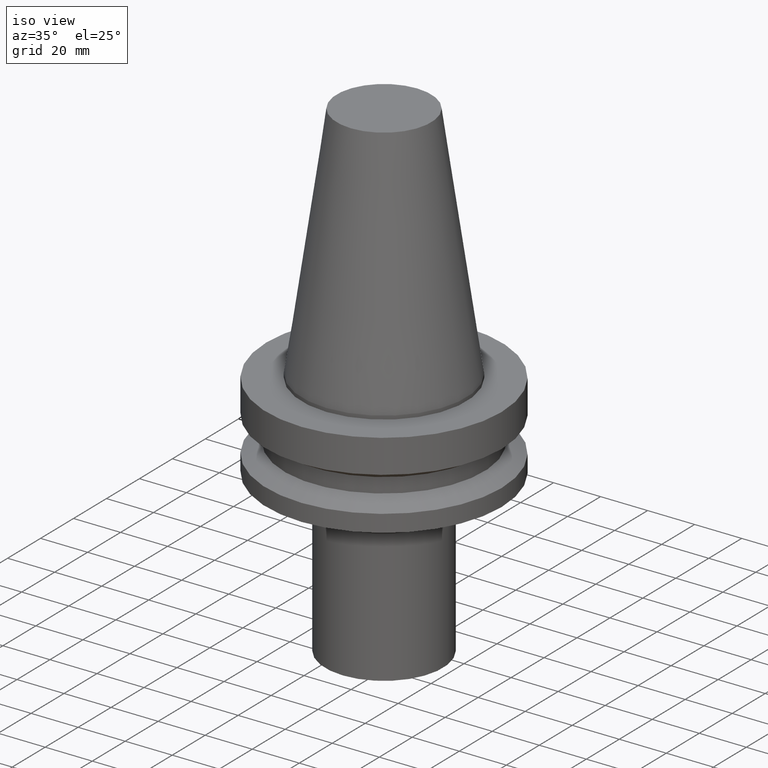
[diagram: clean part render]
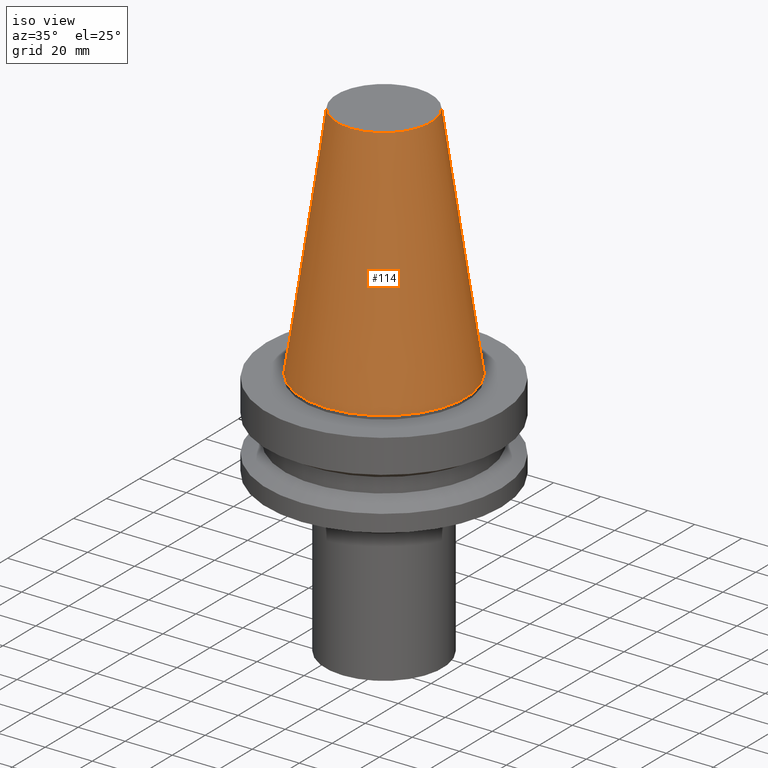
[diagram: tour spotlight — one face highlighted and labeled with its STEP entity id]
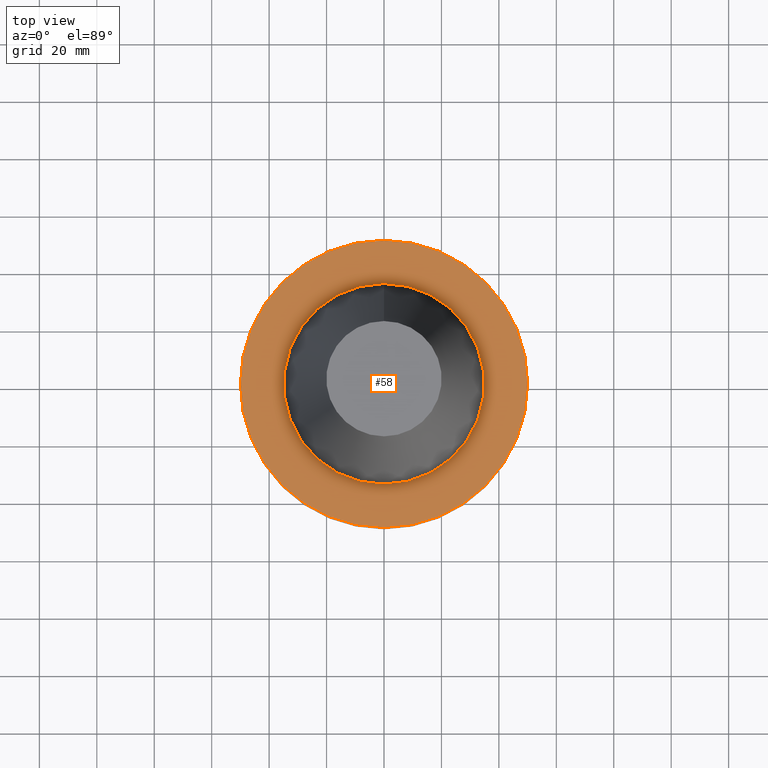
[diagram: tour spotlight — one face highlighted and labeled with its STEP entity id]
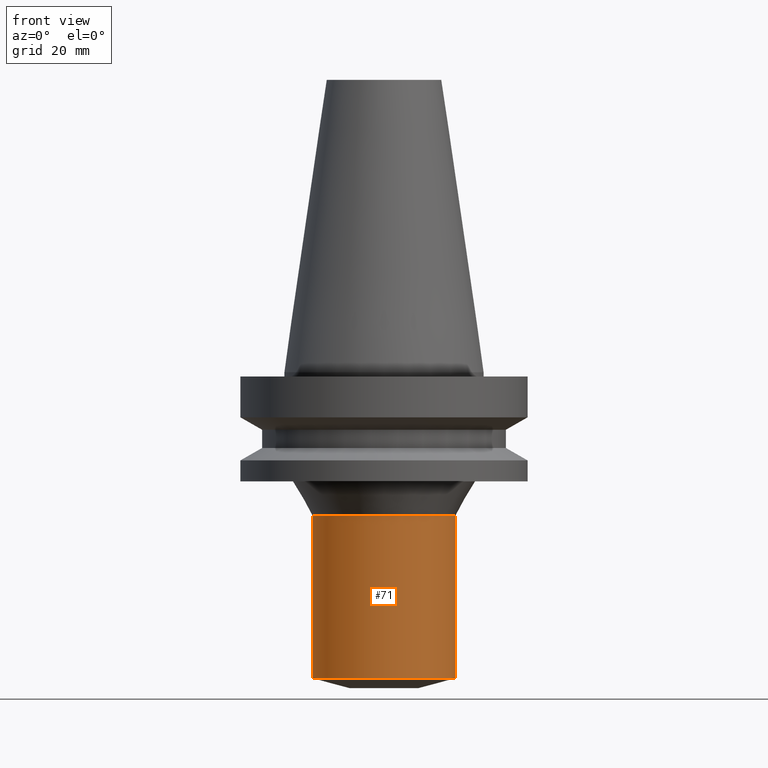
[diagram: tour spotlight — one face highlighted and labeled with its STEP entity id]
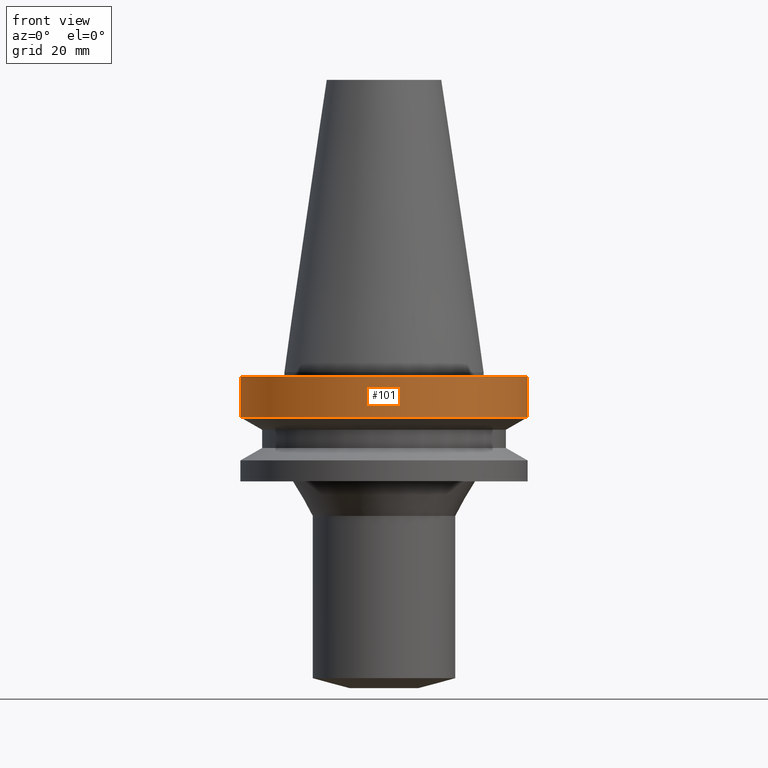
[diagram: tour spotlight — one face highlighted and labeled with its STEP entity id]
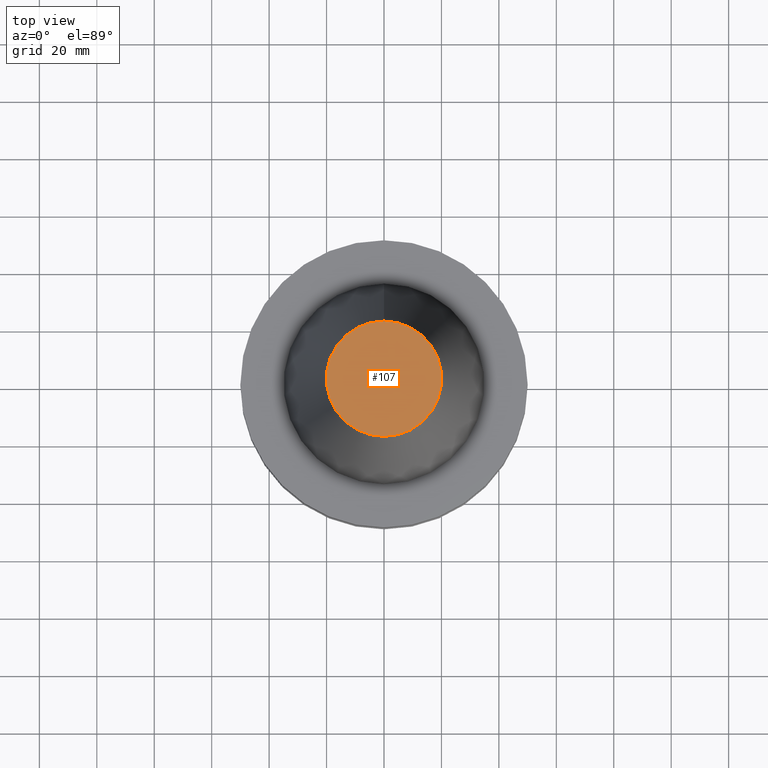
[diagram: tour spotlight — one face highlighted and labeled with its STEP entity id]
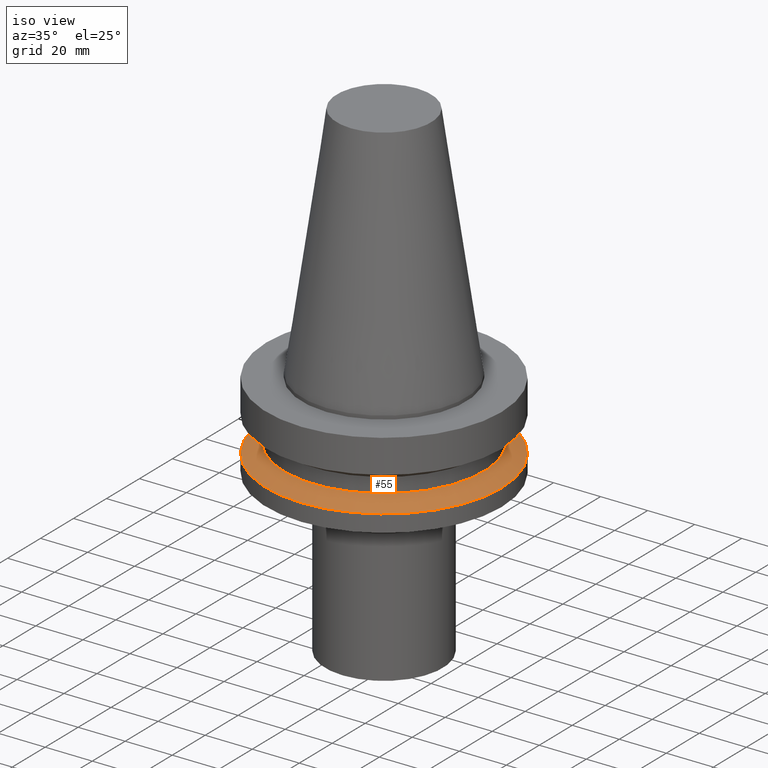
[diagram: tour spotlight — one face highlighted and labeled with its STEP entity id]
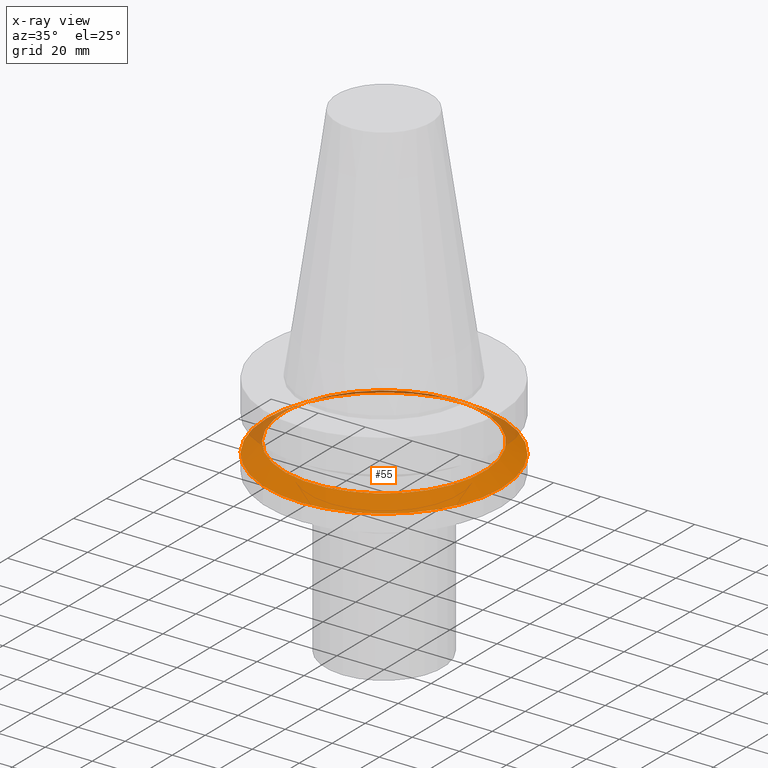
[diagram: x-ray of the same camera — body ghosted, this tour face saturated]
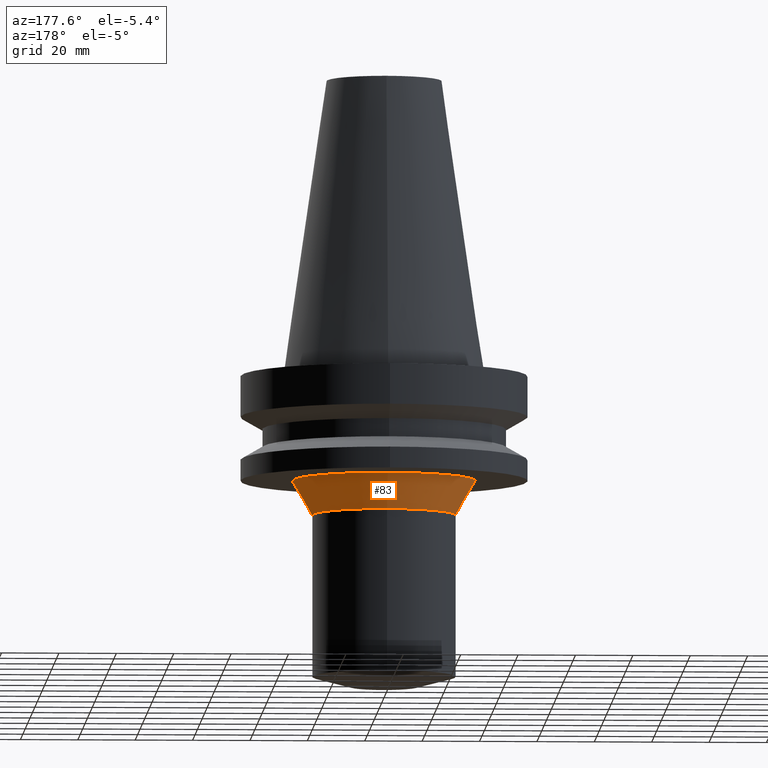
[diagram: tour spotlight — one face highlighted and labeled with its STEP entity id]
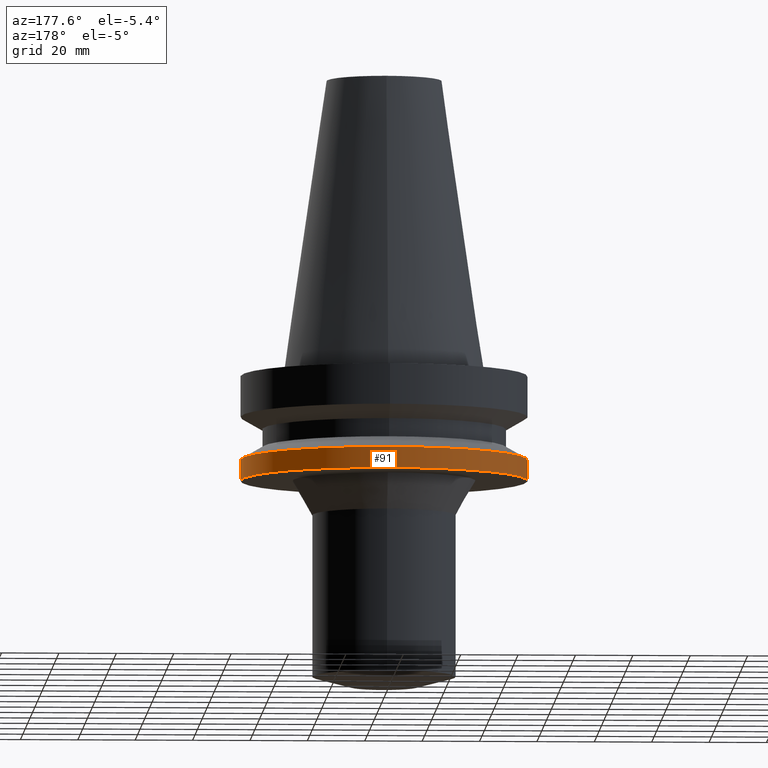
[diagram: tour spotlight — one face highlighted and labeled with its STEP entity id]
A machine part: a face-by-face anatomy tour. The part has 14 B-rep faces; the first image is the clean iso view, then the 8 largest visible faces are spotlighted one at a time (largest first), each with its STEP entity span.

Face 1 — iso view, entity #114. In plain terms, the highlighted conical surface has half-angle 8.297 deg.
Definition (entity closure, byte-faithful):
#98=EDGE_CURVE('Unnamed[1]',#212,#212,#213,.T.);
#114=ADVANCED_FACE('Unnamed[1]',(#236,#237),#238,.T.);
#121=EDGE_CURVE('Unnamed[1]',#246,#246,#247,.T.);
#212=VERTEX_POINT('',#347);
#213=CIRCLE('',#348,34.925);
#236=FACE_BOUND('',#377,.T.);
#237=FACE_BOUND('',#378,.T.);
#238=CONICAL_SURFACE('',#379,27.5020833325942,0.144812498253158);
#246=VERTEX_POINT('',#389);
#247=CIRCLE('',#390,20.0791666651884);
#347=CARTESIAN_POINT('',(-4.30483861169435E-031,34.925,4.27707894602213E-015));
#348=AXIS2_PLACEMENT_3D('',#475,#476,#477);
#377=EDGE_LOOP('',(#502));
#378=EDGE_LOOP('',(#503));
#379=AXIS2_PLACEMENT_3D('',#504,#505,#506);
#389=CARTESIAN_POINT('',(-6.23345220766002E-015,20.0791666651884,101.8));
#390=AXIS2_PLACEMENT_3D('',#511,#512,#513);
#475=CARTESIAN_POINT('',(-6.46439924272034E-048,5.24454373129558E-016,6.42271369351945E-032));
#476=DIRECTION('',(6.12323399573677E-017,1.27566376151315E-016,-1.0));
#477=DIRECTION('',(-1.26383404423932E-032,1.0,1.27566376151315E-016));
#502=ORIENTED_EDGE('',*,*,#98,.F.);
#503=ORIENTED_EDGE('',*,*,#121,.T.);
#504=CARTESIAN_POINT('',(-3.11672610383001E-015,-5.96867417297691E-015,50.8999999999999));
#505=DIRECTION('',(6.12323399573677E-017,1.27566376151432E-016,-1.0));
#506=DIRECTION('',(-1.26383404424073E-032,1.0,1.27566376151432E-016));
#511=CARTESIAN_POINT('',(-6.23345220766002E-015,-1.24618027190834E-014,101.8));
#512=DIRECTION('',(6.12323399573677E-017,1.27566376151475E-016,-1.0));
#513=DIRECTION('',(-1.2638340442405E-032,1.0,1.27566376151475E-016));

Face 2 — top view, entity #58. In plain terms, the highlighted planar face has unit normal (-0, -0, 1).
Definition (entity closure, byte-faithful):
#58=ADVANCED_FACE('Unnamed[1]',(#148,#149),#150,.T.);
#63=EDGE_CURVE('Unnamed[1]',#157,#157,#158,.T.);
#65=EDGE_CURVE('Unnamed[1]',#160,#160,#161,.T.);
#148=FACE_OUTER_BOUND('',#267,.T.);
#149=FACE_BOUND('',#268,.T.);
#150=PLANE('',#269);
#157=VERTEX_POINT('',#278);
#158=CIRCLE('',#279,34.925);
#160=VERTEX_POINT('',#282);
#161=CIRCLE('',#283,50.0);
#267=EDGE_LOOP('',(#402));
#268=EDGE_LOOP('',(#403));
#269=AXIS2_PLACEMENT_3D('',#404,#405,#406);
#278=CARTESIAN_POINT('',(9.18485099360511E-017,34.925,-1.5));
#279=AXIS2_PLACEMENT_3D('',#413,#414,#415);
#282=CARTESIAN_POINT('',(9.18485099360509E-017,50.0,-1.49999999999999));
#283=AXIS2_PLACEMENT_3D('',#416,#417,#418);
#402=ORIENTED_EDGE('',*,*,#65,.F.);
#403=ORIENTED_EDGE('',*,*,#63,.T.);
#404=CARTESIAN_POINT('',(9.1848509936051E-017,42.4625,-1.49999999999999));
#405=DIRECTION('',(-6.12323399573677E-017,-1.22464679914735E-016,1.0));
#406=DIRECTION('',(1.23259516440783E-032,-1.0,-1.22464679914735E-016));
#413=CARTESIAN_POINT('',(9.18485099360515E-017,7.15803937356665E-016,-1.5));
#414=DIRECTION('',(6.12323399573677E-017,1.27566376151315E-016,-1.0));
#415=DIRECTION('',(-1.26383404423932E-032,1.0,1.27566376151315E-016));
#416=CARTESIAN_POINT('',(9.18485099360515E-017,7.15803937356665E-016,-1.5));
#417=DIRECTION('',(6.12323399573677E-017,1.2756637615137E-016,-1.0));
#418=DIRECTION('',(-1.26383404424069E-032,1.0,1.2756637615137E-016));

Face 3 — front view, entity #71. In plain terms, the highlighted cylindrical surface (bore or boss wall) has radius 25 mm, axis along (0, 0, -1).
Definition (entity closure, byte-faithful):
#71=ADVANCED_FACE('Unnamed[1]',(#168,#169),#170,.T.);
#85=EDGE_CURVE('Unnamed[1]',#191,#191,#192,.T.);
#116=EDGE_CURVE('Unnamed[1]',#240,#240,#241,.T.);
#168=FACE_BOUND('',#292,.T.);
#169=FACE_BOUND('',#293,.T.);
#170=CYLINDRICAL_SURFACE('',#294,25.0000000000277);
#191=VERTEX_POINT('',#321);
#192=CIRCLE('',#322,24.9999999999974);
#240=VERTEX_POINT('',#382);
#241=CIRCLE('',#383,25.0000000000579);
#292=EDGE_LOOP('',(#425));
#293=EDGE_LOOP('',(#426));
#294=AXIS2_PLACEMENT_3D('',#427,#428,#429);
#321=CARTESIAN_POINT('',(6.52226436676132E-015,24.9999999999974,-106.516660498396));
#322=AXIS2_PLACEMENT_3D('',#451,#452,#453);
#382=CARTESIAN_POINT('',(3.06161699786306E-015,25.0000000000579,-49.9999999999131));
#383=AXIS2_PLACEMENT_3D('',#507,#508,#509);
#425=ORIENTED_EDGE('',*,*,#85,.F.);
#426=ORIENTED_EDGE('',*,*,#116,.T.);
#427=CARTESIAN_POINT('',(4.79194068231219E-015,1.0507585966674E-014,-78.2583302491547));
#428=DIRECTION('',(6.12323399573677E-017,1.27566376151358E-016,-1.0));
#429=DIRECTION('',(-1.26383404424E-032,1.0,1.27566376151358E-016));
#451=CARTESIAN_POINT('',(6.52226436676132E-015,1.41123987526594E-014,-106.516660498396));
#452=DIRECTION('',(6.12323399573676E-017,1.27566376151383E-016,-1.0));
#453=DIRECTION('',(-1.26383404424082E-032,1.0,1.27566376151383E-016));
#507=CARTESIAN_POINT('',(3.06161699786306E-015,6.90277318068868E-015,-49.9999999999131));
#508=DIRECTION('',(6.12323399573677E-017,1.27566376151462E-016,-1.0));
#509=DIRECTION('',(-1.26383404423991E-032,1.0,1.27566376151462E-016));

Face 4 — front view, entity #101. In plain terms, the highlighted cylindrical surface (bore or boss wall) has radius 50 mm, axis along (0, 0, -1).
Definition (entity closure, byte-faithful):
#65=EDGE_CURVE('Unnamed[1]',#160,#160,#161,.T.);
#78=EDGE_CURVE('Unnamed[1]',#180,#180,#181,.T.);
#101=ADVANCED_FACE('Unnamed[1]',(#216,#217),#218,.T.);
#160=VERTEX_POINT('',#282);
#161=CIRCLE('',#283,50.0);
#180=VERTEX_POINT('',#307);
#181=CIRCLE('',#308,50.0);
#216=FACE_BOUND('',#352,.T.);
#217=FACE_BOUND('',#353,.T.);
#218=CYLINDRICAL_SURFACE('',#354,50.0);
#282=CARTESIAN_POINT('',(9.18485099360509E-017,50.0,-1.49999999999999));
#283=AXIS2_PLACEMENT_3D('',#416,#417,#418);
#307=CARTESIAN_POINT('',(9.61347737330674E-016,50.0,-15.7));
#308=AXIS2_PLACEMENT_3D('',#439,#440,#441);
#352=EDGE_LOOP('',(#479));
#353=EDGE_LOOP('',(#480));
#354=AXIS2_PLACEMENT_3D('',#481,#482,#483);
#416=CARTESIAN_POINT('',(9.18485099360515E-017,7.15803937356665E-016,-1.5));
#417=DIRECTION('',(6.12323399573677E-017,1.2756637615137E-016,-1.0));
#418=DIRECTION('',(-1.26383404424069E-032,1.0,1.2756637615137E-016));
#439=CARTESIAN_POINT('',(9.61347737330675E-016,2.52724647870661E-015,-15.7));
#440=DIRECTION('',(6.12323399573677E-017,1.2756637615137E-016,-1.0));
#441=DIRECTION('',(-1.26383404424069E-032,1.0,1.2756637615137E-016));
#479=ORIENTED_EDGE('',*,*,#78,.F.);
#480=ORIENTED_EDGE('',*,*,#65,.T.);
#481=CARTESIAN_POINT('',(5.26598123633363E-016,1.62152520803164E-015,-8.60000000000002));
#482=DIRECTION('',(6.12323399573677E-017,1.2756637615137E-016,-1.0));
#483=DIRECTION('',(-1.26383404424069E-032,1.0,1.2756637615137E-016));

Face 5 — top view, entity #107. In plain terms, the highlighted planar face has unit normal (-0, -0, 1).
Definition (entity closure, byte-faithful):
#107=ADVANCED_FACE('Unnamed[1]',(#226),#227,.T.);
#121=EDGE_CURVE('Unnamed[1]',#246,#246,#247,.T.);
#226=FACE_OUTER_BOUND('',#364,.T.);
#227=PLANE('',#365);
#246=VERTEX_POINT('',#389);
#247=CIRCLE('',#390,20.0791666651884);
#364=EDGE_LOOP('',(#491));
#365=AXIS2_PLACEMENT_3D('',#492,#493,#494);
#389=CARTESIAN_POINT('',(-6.23345220766002E-015,20.0791666651884,101.8));
#390=AXIS2_PLACEMENT_3D('',#511,#512,#513);
#491=ORIENTED_EDGE('',*,*,#121,.F.);
#492=CARTESIAN_POINT('',(-6.23345220766002E-015,10.0395833325942,101.8));
#493=DIRECTION('',(-6.12323399573677E-017,-1.22464679914735E-016,1.0));
#494=DIRECTION('',(1.23259516440783E-032,-1.0,-1.22464679914735E-016));
#511=CARTESIAN_POINT('',(-6.23345220766002E-015,-1.24618027190834E-014,101.8));
#512=DIRECTION('',(6.12323399573677E-017,1.27566376151475E-016,-1.0));
#513=DIRECTION('',(-1.2638340442405E-032,1.0,1.27566376151475E-016));

Face 6 — iso view, entity #55. An x-ray twin of the same camera follows (body ghosted, this face saturated) — the face is partly hidden behind the body. In plain terms, the highlighted conical surface has half-angle 60 deg.
Definition (entity closure, byte-faithful):
#52=EDGE_CURVE('Unnamed[1]',#139,#139,#140,.T.);
#55=ADVANCED_FACE('Unnamed[1]',(#143,#144),#145,.T.);
#93=EDGE_CURVE('Unnamed[1]',#204,#204,#205,.T.);
#139=VERTEX_POINT('',#256);
#140=CIRCLE('',#257,42.5);
#143=FACE_BOUND('',#261,.T.);
#144=FACE_BOUND('',#262,.T.);
#145=CONICAL_SURFACE('',#263,46.25,1.04719755108881);
#204=VERTEX_POINT('',#337);
#205=CIRCLE('',#338,50.0);
#256=CARTESIAN_POINT('',(1.61468902694396E-015,42.5,-26.36987298));
#257=AXIS2_PLACEMENT_3D('',#392,#393,#394);
#261=EDGE_LOOP('',(#396));
#262=EDGE_LOOP('',(#397));
#263=AXIS2_PLACEMENT_3D('',#398,#399,#400);
#337=CARTESIAN_POINT('',(1.87983283669119E-015,50.0,-30.7000000000001));
#338=AXIS2_PLACEMENT_3D('',#466,#467,#468);
#392=CARTESIAN_POINT('',(1.61468902694396E-015,3.88836350876098E-015,-26.36987298));
#393=DIRECTION('',(6.12323399573677E-017,1.27566376151415E-016,-1.0));
#394=DIRECTION('',(-1.2638340442409E-032,1.0,1.27566376151415E-016));
#396=ORIENTED_EDGE('',*,*,#93,.F.);
#397=ORIENTED_EDGE('',*,*,#52,.T.);
#398=CARTESIAN_POINT('',(1.74726093181758E-015,4.16455281486933E-015,-28.53493649));
#399=DIRECTION('',(6.12323399573676E-017,1.27566376151391E-016,-1.0));
#400=DIRECTION('',(-1.26383404424039E-032,1.0,1.27566376151391E-016));
#466=CARTESIAN_POINT('',(1.87983283669119E-015,4.44074212097767E-015,-30.7000000000001));
#467=DIRECTION('',(6.12323399573677E-017,1.2756637615137E-016,-1.0));
#468=DIRECTION('',(-1.26383404424069E-032,1.0,1.2756637615137E-016));

Face 7 — auxiliary view, entity #83. In plain terms, the highlighted conical surface has half-angle 30 deg.
Definition (entity closure, byte-faithful):
#80=EDGE_CURVE('Unnamed[1]',#183,#183,#184,.T.);
#83=ADVANCED_FACE('Unnamed[1]',(#187,#188),#189,.T.);
#116=EDGE_CURVE('Unnamed[1]',#240,#240,#241,.T.);
#183=VERTEX_POINT('',#311);
#184=CIRCLE('',#312,31.9282032302842);
#187=FACE_BOUND('',#316,.T.);
#188=FACE_BOUND('',#317,.T.);
#189=CONICAL_SURFACE('',#318,28.4641016151711,0.523598775598356);
#240=VERTEX_POINT('',#382);
#241=CIRCLE('',#383,25.0000000000579);
#311=CARTESIAN_POINT('',(2.32682891837997E-015,31.9282032302842,-38.0));
#312=AXIS2_PLACEMENT_3D('',#442,#443,#444);
#316=EDGE_LOOP('',(#446));
#317=EDGE_LOOP('',(#447));
#318=AXIS2_PLACEMENT_3D('',#448,#449,#450);
#382=CARTESIAN_POINT('',(3.06161699786306E-015,25.0000000000579,-49.9999999999131));
#383=AXIS2_PLACEMENT_3D('',#507,#508,#509);
#442=CARTESIAN_POINT('',(2.32682891837997E-015,5.37197666688292E-015,-38.0));
#443=DIRECTION('',(6.12323399573677E-017,1.27566376151435E-016,-1.0));
#444=DIRECTION('',(-1.26383404423945E-032,1.0,1.27566376151435E-016));
#446=ORIENTED_EDGE('',*,*,#116,.F.);
#447=ORIENTED_EDGE('',*,*,#80,.T.);
#448=CARTESIAN_POINT('',(2.69422295812152E-015,6.1373749237858E-015,-43.9999999999565));
#449=DIRECTION('',(-6.12323399573677E-017,-1.2756637615139E-016,1.0));
#450=DIRECTION('',(-1.26383404424028E-032,1.0,1.2756637615139E-016));
#507=CARTESIAN_POINT('',(3.06161699786306E-015,6.90277318068868E-015,-49.9999999999131));
#508=DIRECTION('',(6.12323399573677E-017,1.27566376151462E-016,-1.0));
#509=DIRECTION('',(-1.26383404423991E-032,1.0,1.27566376151462E-016));

Face 8 — auxiliary view, entity #91. In plain terms, the highlighted cylindrical surface (bore or boss wall) has radius 50 mm, axis along (0, 0, -1).
Definition (entity closure, byte-faithful):
#91=ADVANCED_FACE('Unnamed[1]',(#200,#201),#202,.T.);
#93=EDGE_CURVE('Unnamed[1]',#204,#204,#205,.T.);
#111=EDGE_CURVE('Unnamed[1]',#232,#232,#233,.T.);
#200=FACE_BOUND('',#332,.T.);
#201=FACE_BOUND('',#333,.T.);
#202=CYLINDRICAL_SURFACE('',#334,50.0);
#204=VERTEX_POINT('',#337);
#205=CIRCLE('',#338,50.0);
#232=VERTEX_POINT('',#372);
#233=CIRCLE('',#373,50.0);
#332=EDGE_LOOP('',(#461));
#333=EDGE_LOOP('',(#462));
#334=AXIS2_PLACEMENT_3D('',#463,#464,#465);
#337=CARTESIAN_POINT('',(1.87983283669119E-015,50.0,-30.7000000000001));
#338=AXIS2_PLACEMENT_3D('',#466,#467,#468);
#372=CARTESIAN_POINT('',(2.32682891837997E-015,50.0,-38.0));
#373=AXIS2_PLACEMENT_3D('',#498,#499,#500);
#461=ORIENTED_EDGE('',*,*,#111,.F.);
#462=ORIENTED_EDGE('',*,*,#93,.T.);
#463=CARTESIAN_POINT('',(2.10333087753558E-015,4.90635939393029E-015,-34.35));
#464=DIRECTION('',(6.12323399573677E-017,1.2756637615137E-016,-1.0));
#465=DIRECTION('',(-1.26383404424069E-032,1.0,1.2756637615137E-016));
#466=CARTESIAN_POINT('',(1.87983283669119E-015,4.44074212097767E-015,-30.7000000000001));
#467=DIRECTION('',(6.12323399573677E-017,1.2756637615137E-016,-1.0));
#468=DIRECTION('',(-1.26383404424069E-032,1.0,1.2756637615137E-016));
#498=CARTESIAN_POINT('',(2.32682891837997E-015,5.37197666688292E-015,-38.0));
#499=DIRECTION('',(6.12323399573677E-017,1.2756637615137E-016,-1.0));
#500=DIRECTION('',(-1.26383404424069E-032,1.0,1.2756637615137E-016));